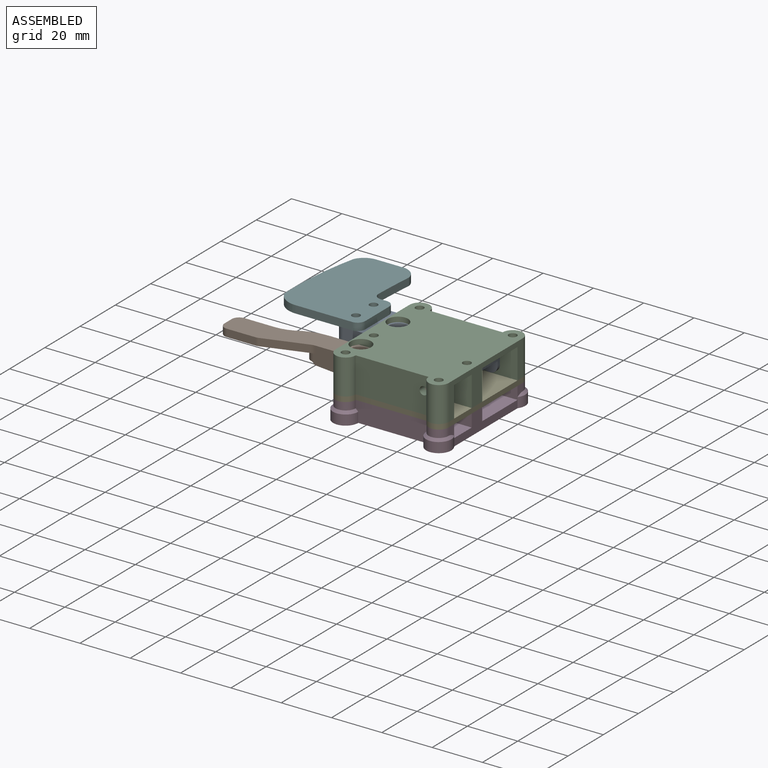
[diagram: assembled view]
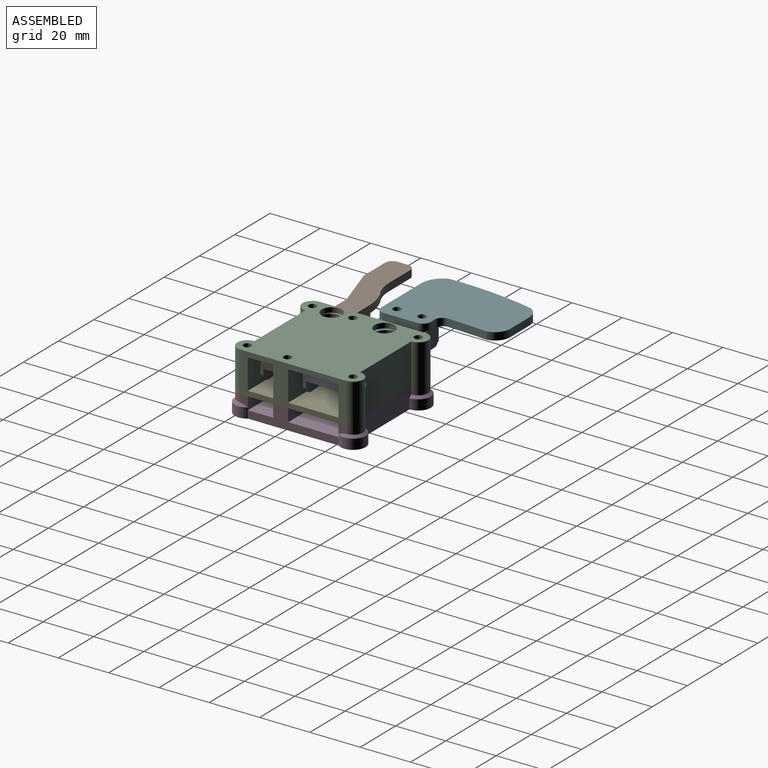
[diagram: assembled view, second angle]
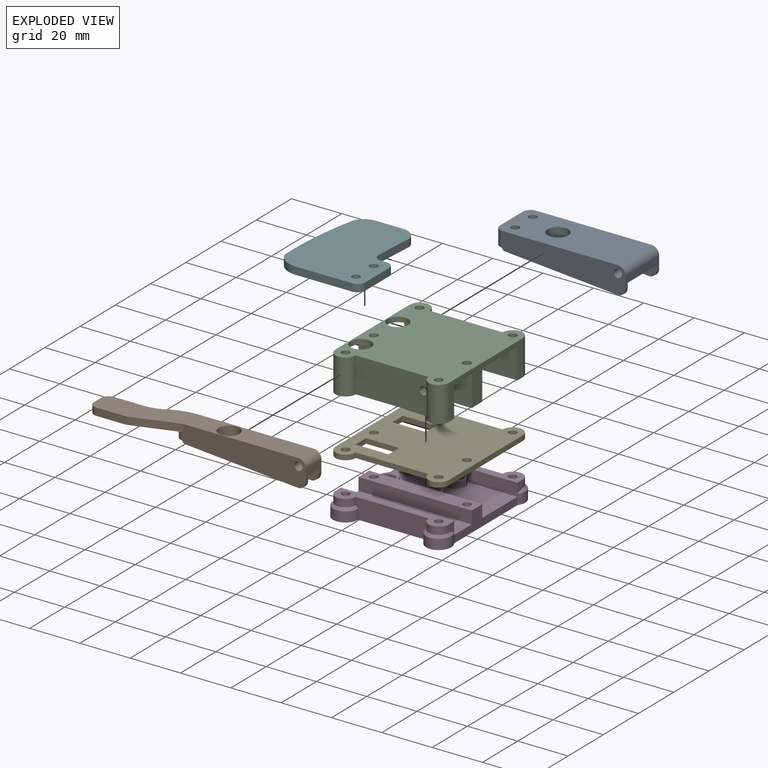
[diagram: exploded view]
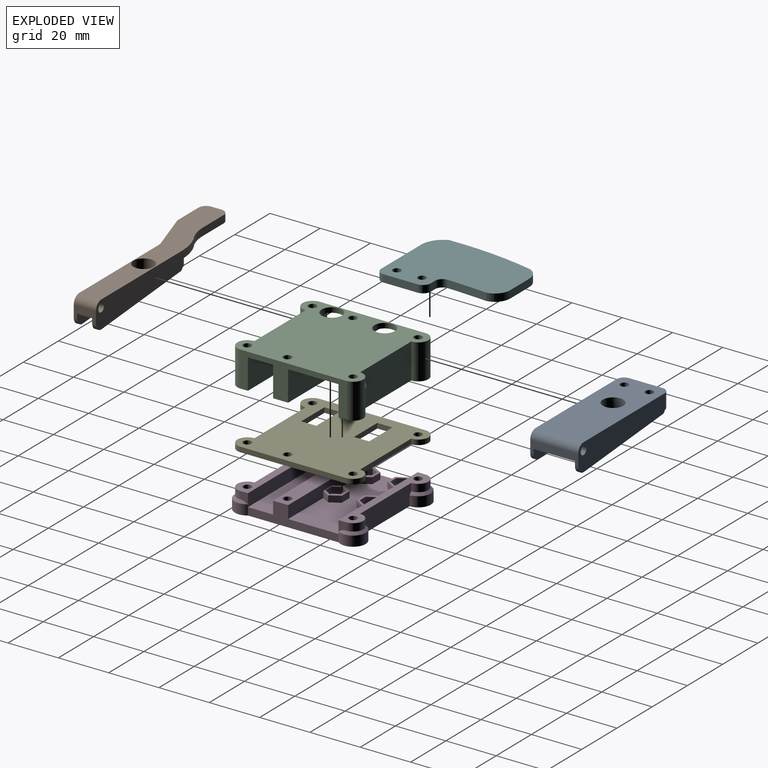
[diagram: exploded view, second angle]
ASSEMBLY  parts=6 mates=5
PART A: 40 faces, bbox 52x19.1x10.7 mm
  f0: plane 2.55x1.15mm, normal (0,1,0), area 1.9mm2, adj f3,f4,f5,f6,f31
  f1: plane 46.84x4.75mm, normal (0,-1,0), area 142.3mm2, adj f3,f8,f16,f17,f21
  f2: plane 13.1x6mm, normal (-1,0,0), area 78.6mm2, adj f3,f10,f19,f20
  f3: plane 52x18.91mm, normal (0,0,-1), area 801.8mm2, adj f0,f1,f2,f4,f8,f11,f14,f18
  f4: cylinder r=0.95mm len=1.3mm, axis (0,-1,0), area 1.3mm2, adj f0,f3,f5,f12,f20
  f5: cylinder r=1mm len=1.3mm, axis (0,-1,0), area 1.3mm2, adj f0,f4,f6,f12
  f6: plane 44.84x3.66mm, normal (-0.08,0,-1), area 58.5mm2, adj f0,f5,f7,f11,f12,f31,f32
  f7: cylinder r=3mm len=3.24mm, axis (0,-1,0), area 6.4mm2, adj f6,f8,f11,f12
  f8: plane 19.1x4.74mm, normal (1,0,0), area 61.8mm2, adj f1,f3,f7,f9,f11,f12,f13,f17
  f9: cylinder r=3mm len=19.1mm, axis (0,-1,0), area 90mm2, adj f8,f10,f12,f13
  f10: plane 49x19.1mm, normal (0,0,1), area 863.1mm2, adj f2,f9,f12,f13,f19,f20,f35,f36
  f11: plane 46.82x4.75mm, normal (0,1,0), area 142.3mm2, adj f3,f6,f7,f8,f32
  f12: plane 49x10.75mm, normal (0,-1,0), area 428.6mm2, adj f4,f5,f6,f7,f8,f9,f10,f20
  f13: plane 49x10.75mm, normal (0,1,0), area 428.6mm2, adj f8,f9,f10,f14,f15,f16,f17,f19
  f14: cylinder r=0.95mm len=1.3mm, axis (0,-1,0), area 1.3mm2, adj f3,f13,f15,f18,f19
  f15: cylinder r=1mm len=1.3mm, axis (0,-1,0), area 1.3mm2, adj f13,f14,f16,f18
  f16: plane 44.84x3.66mm, normal (-0.08,0,-1), area 58.5mm2, adj f1,f13,f15,f17,f18,f21,f22
  f17: cylinder r=3mm len=3.24mm, axis (0,-1,0), area 6.4mm2, adj f1,f8,f13,f16
  f18: plane 2.57x1.15mm, normal (0,-1,0), area 1.9mm2, adj f3,f14,f15,f16,f22
  f19: cylinder r=3mm len=6.36mm, axis (0,0,1), area 28.4mm2, adj f2,f3,f10,f13,f14
  f20: cylinder r=3mm len=6.36mm, axis (0,0,-1), area 28.4mm2, adj f2,f3,f4,f10,f12
  f21: plane 3.68x2.9mm, normal (-0.5,-0.87,0), area 8.6mm2, adj f1,f3,f16,f22,f26,f27
  f22: plane 3.66x2.9mm, normal (0.5,-0.87,0), area 8.6mm2, adj f3,f16,f18,f21,f23,f27
  f23: plane 3.35x2.5mm, normal (1,0,0), area 8.4mm2, adj f3,f22,f24,f27
  f24: plane 2.9x2.5mm, normal (0.5,0.87,0), area 8.4mm2, adj f3,f23,f25,f27
  f25: plane 2.9x2.5mm, normal (-0.5,0.87,0), area 8.4mm2, adj f3,f24,f26,f27
  f26: plane 3.35x2.5mm, normal (-1,0,0), area 8.4mm2, adj f3,f21,f25,f27
  f27: plane 6.7x5.8mm, normal (0,0,-1), area 21.1mm2, adj f21,f22,f23,f24,f25,f26,f36
  f28: plane 2.9x2.5mm, normal (-0.5,-0.87,0), area 8.4mm2, adj f3,f29,f33,f34
  f29: plane 2.9x2.5mm, normal (0.5,-0.87,0), area 8.4mm2, adj f3,f28,f30,f34
  f30: plane 3.35x2.5mm, normal (1,0,0), area 8.4mm2, adj f3,f29,f31,f34
  f31: plane 3.66x2.9mm, normal (0.5,0.87,0), area 8.6mm2, adj f0,f3,f6,f30,f32,f34
  f32: plane 3.68x2.9mm, normal (-0.5,0.87,0), area 8.6mm2, adj f3,f6,f11,f31,f33,f34
  f33: plane 3.35x2.5mm, normal (-1,0,0), area 8.4mm2, adj f3,f28,f32,f34
  f34: plane 6.7x5.8mm, normal (0,0,-1), area 21.1mm2, adj f28,f29,f30,f31,f32,f33,f35
  f35: cylinder r=1.6mm len=3.5mm, axis (0,0,1), area 35.2mm2, adj f10,f34
  f36: cylinder r=1.6mm len=3.5mm, axis (0,0,1), area 35.2mm2, adj f10,f27
  f37: cylinder r=4.1mm len=8.2mm, axis (0,0,1), area 115.9mm2, adj f10,f38
  f38: plane 8.2x8.2mm, normal (0,0,1), area 52.8mm2, adj f37
  f39: cylinder r=1.6mm len=19.1mm, axis (0,-1,0), area 192mm2, adj f12,f13
PART B: 33 faces, bbox 82.2x14.7x10.7 mm
  f0: plane 3x2.8mm, normal (-1,0,0), area 8.4mm2, adj f1,f2,f3,f28
  f1: cylinder r=3mm len=3.36mm, axis (0,0,1), area 14.2mm2, adj f0,f3,f13,f14,f28
  f2: cylinder r=3mm len=3.36mm, axis (0,0,-1), area 14.2mm2, adj f0,f3,f4,f12,f28
  f3: plane 52x8.61mm, normal (0,0,-1), area 314.5mm2, adj f0,f1,f2,f4,f8,f11,f14,f18
  f4: cylinder r=0.95mm len=1.3mm, axis (0,-1,0), area 1.3mm2, adj f2,f3,f5,f11,f12
  f5: cylinder r=1mm len=1.3mm, axis (0,-1,0), area 1.3mm2, adj f4,f6,f11,f12
  f6: plane 44.84x3.66mm, normal (-0.08,0,-1), area 58.5mm2, adj f5,f7,f11,f12
  f7: cylinder r=3mm len=3.24mm, axis (0,-1,0), area 6.4mm2, adj f6,f8,f11,f12
  f8: plane 8.8x4.74mm, normal (1,0,0), area 31.3mm2, adj f3,f7,f9,f11,f12,f13,f17,f18
  f9: cylinder r=3mm len=8.8mm, axis (0,-1,0), area 41.5mm2, adj f8,f10,f12,f13
  f10: plane 79.2x14.68mm, normal (0,0,1), area 671.5mm2, adj f9,f12,f13,f19,f22,f23,f24,f25
  f11: plane 49.75x4.75mm, normal (0,1,0), area 144.6mm2, adj f3,f4,f5,f6,f7,f8
  f12: plane 49x10.75mm, normal (0,-1,0), area 426.2mm2, adj f2,f4,f5,f6,f7,f8,f9,f10
  f13: plane 49x10.75mm, normal (0,1,0), area 428.6mm2, adj f1,f8,f9,f10,f14,f15,f16,f17
  f14: cylinder r=0.95mm len=1.5mm, axis (0,-1,0), area 1.6mm2, adj f1,f3,f13,f15,f18
  f15: cylinder r=1mm len=1.5mm, axis (0,-1,0), area 1.5mm2, adj f13,f14,f16,f18
  f16: plane 44.84x3.66mm, normal (-0.08,0,-1), area 67.5mm2, adj f13,f15,f17,f18
  f17: cylinder r=3mm len=3.24mm, axis (0,-1,0), area 7.4mm2, adj f8,f13,f16,f18
  f18: plane 49.75x4.75mm, normal (0,-1,0), area 144.6mm2, adj f3,f8,f14,f15,f16,f17
  f19: cylinder r=4.1mm len=8.2mm, axis (0,0,1), area 115.9mm2, adj f10,f20
  f20: plane 8.2x8.2mm, normal (0,0,1), area 52.8mm2, adj f19
  f21: cylinder r=1.6mm len=8.8mm, axis (0,-1,0), area 88.5mm2, adj f12,f13
  f22: cylinder r=22.27mm len=9.27mm, axis (0,0,1), area 28.7mm2, adj f10,f13,f23,f28
  f23: cylinder r=16.33mm len=8.93mm, axis (0,0,1), area 28.4mm2, adj f10,f22,f24,f28
  f24: plane 12x3mm, normal (0,1,0), area 36mm2, adj f10,f23,f28,f29
  f25: plane 4x3mm, normal (-1,0,0), area 12mm2, adj f10,f28,f29,f30
  f26: plane 11.53x3mm, normal (0,-1,0), area 34.6mm2, adj f10,f28,f30,f31
  f27: plane 17x5.49mm, normal (0.31,-0.95,0), area 53.6mm2, adj f10,f28,f31,f32
  f28: plane 33.99x14.68mm, normal (0,0,-1), area 297mm2, adj f0,f1,f2,f12,f22,f23,f24,f25
  f29: cylinder r=3mm len=3mm, axis (0,0,-1), area 14.1mm2, adj f10,f24,f25,f28
  f30: cylinder r=3mm len=3mm, axis (0,0,1), area 14.1mm2, adj f10,f25,f26,f28
  f31: cylinder r=3mm len=3mm, axis (0,0,1), area 2.8mm2, adj f10,f26,f27,f28
  f32: cylinder r=5mm len=3mm, axis (0,0,1), area 4.7mm2, adj f10,f12,f27,f28
PART C: 29 faces, bbox 45x50x14 mm
  f0: plane 45x10mm, normal (0,0,-1), area 398.3mm2, adj f2,f6,f12,f22,f24
  f1: plane 45x20mm, normal (0,0,-1), area 848.3mm2, adj f2,f6,f16,f19,f21
  f2: plane 42x14mm, normal (1,0,0), area 228mm2, adj f0,f1,f3,f15,f18,f19,f20,f21
  f3: cylinder r=4mm len=14mm, axis (0,0,-1), area 176mm2, adj f2,f4,f18,f20
  f4: plane 28.99x14mm, normal (0,1,0), area 397.9mm2, adj f3,f5,f18,f20,f28
  f5: cylinder r=4mm len=14mm, axis (0,0,-1), area 176mm2, adj f4,f6,f18,f20
  f6: plane 42x14mm, normal (-1,0,0), area 228mm2, adj f0,f1,f5,f7,f18,f19,f20,f21
  f7: cylinder r=4mm len=14mm, axis (0,0,-1), area 176mm2, adj f6,f8,f18,f25
  f8: plane 28.99x14mm, normal (0,-1,0), area 397.9mm2, adj f7,f15,f18,f25,f26
  f9: cylinder r=1.6mm len=14mm, axis (0,0,-1), area 141.1mm2, adj f18,f20
  f10: cylinder r=1.6mm len=14mm, axis (0,0,-1), area 141.1mm2, adj f18,f25
  f11: cylinder r=1.6mm len=14mm, axis (0,0,-1), area 141.1mm2, adj f18,f25
  f12: cylinder r=4.06mm len=8.12mm, axis (0,0,-1), area 51mm2, adj f0,f18
  f13: cylinder r=1.6mm len=14mm, axis (0,0,-1), area 141.1mm2, adj f18,f23
  f14: cylinder r=1.6mm len=14mm, axis (0,0,-1), area 141.1mm2, adj f18,f23
  f15: cylinder r=4mm len=14mm, axis (0,0,-1), area 176mm2, adj f2,f8,f18,f25
  f16: cylinder r=4.06mm len=8.12mm, axis (0,0,-1), area 51mm2, adj f1,f18
  f17: cylinder r=1.6mm len=14mm, axis (0,0,-1), area 141.1mm2, adj f18,f20
  f18: plane 50.01x45mm, normal (0,0,1), area 1838.5mm2, adj f2,f3,f4,f5,f6,f7,f8,f9
  f19: plane 45x12mm, normal (0,-1,0), area 532mm2, adj f1,f2,f6,f20,f28
  f20: plane 45x7mm, normal (0,0,-1), area 169.2mm2, adj f2,f3,f4,f5,f6,f9,f17,f19
  f21: plane 45x12mm, normal (0,1,0), area 532mm2, adj f1,f2,f6,f23,f27
  f22: plane 45x12mm, normal (0,-1,0), area 532mm2, adj f0,f2,f6,f23,f27
  f23: plane 45x6mm, normal (0,0,-1), area 253.7mm2, adj f2,f6,f13,f14,f21,f22
  f24: plane 45x12mm, normal (0,1,0), area 532mm2, adj f0,f2,f6,f25,f26
  f25: plane 45x7mm, normal (0,0,-1), area 169.1mm2, adj f2,f6,f7,f8,f10,f11,f15,f24
  f26: cylinder r=1.6mm len=3.2mm, axis (0,-1,0), area 30.1mm2, adj f8,f24
  f27: cylinder r=1.6mm len=6mm, axis (0,-1,0), area 60.3mm2, adj f21,f22
  f28: cylinder r=1.6mm len=3.2mm, axis (0,-1,0), area 30.1mm2, adj f4,f19
PART D: 134 faces, bbox 47x8x52 mm
  f0: cylinder r=1.6mm len=4mm, axis (0,-1,0), area 40.3mm2, adj f27,f133
  f1: cylinder r=1.6mm len=4mm, axis (0,-1,0), area 40.3mm2, adj f27,f126
  f2: cylinder r=1.6mm len=4mm, axis (0,-1,0), area 40.3mm2, adj f29,f119
  f3: cylinder r=1.6mm len=4mm, axis (0,-1,0), area 40.3mm2, adj f29,f112
  f4: cylinder r=1.6mm len=4mm, axis (0,-1,0), area 40.3mm2, adj f35,f105
  f5: cylinder r=1.6mm len=4mm, axis (0,-1,0), area 40.3mm2, adj f35,f98
  f6: plane 45x20.01mm, normal (0,1,0), area 706.6mm2, adj f10,f14,f22,f28,f41,f42,f43,f44
  f7: plane 45x10mm, normal (0,1,0), area 450.1mm2, adj f10,f14,f17,f30
  f8: plane 28.99x8mm, normal (0,0,1), area 223mm2, adj f9,f15,f16,f18,f21,f24,f25,f27
  f9: cylinder r=5mm len=10mm, axis (0,-1,0), area 75.7mm2, adj f8,f10,f16,f18,f22
  f10: plane 36x8mm, normal (1,0,0), area 138mm2, adj f6,f7,f9,f11,f16,f17,f28,f29
  f11: cylinder r=5mm len=10mm, axis (0,-1,0), area 75.7mm2, adj f10,f12,f16,f19,f30
  f12: plane 28.99x8mm, normal (0,0,-1), area 223mm2, adj f11,f13,f16,f19,f20,f31,f34,f35
  f13: cylinder r=5mm len=10mm, axis (0,-1,0), area 75.7mm2, adj f12,f14,f16,f20,f30
  f14: plane 36x8mm, normal (-1,0,0), area 138mm2, adj f6,f7,f13,f15,f16,f17,f28,f29
  f15: cylinder r=5mm len=10mm, axis (0,-1,0), area 75.7mm2, adj f8,f14,f16,f21,f22
  f16: plane 52x47mm, normal (0,-1,0), area 1842.8mm2, adj f8,f9,f10,f11,f12,f13,f14,f15
  f17: plane 45x5mm, normal (0,0,-1), area 225mm2, adj f7,f10,f14,f29
  f18: cone r=5mm half-angle=45deg, axis (0,-1,0), area 22.8mm2, adj f8,f9,f25,f26
  f19: cone r=5mm half-angle=45deg, axis (0,-1,0), area 22.8mm2, adj f11,f12,f33,f34
  f20: cone r=5mm half-angle=45deg, axis (0,-1,0), area 22.8mm2, adj f12,f13,f31,f32
  f21: cone r=5mm half-angle=45deg, axis (0,-1,0), area 22.8mm2, adj f8,f15,f23,f24
  f22: plane 45x5mm, normal (0,0,-1), area 199.2mm2, adj f6,f9,f15,f23,f26,f27,f44,f45
  f23: plane 4x3mm, normal (-1,0,0), area 10mm2, adj f21,f22,f24,f27
  f24: cylinder r=4mm len=8mm, axis (0,-1,0), area 37.7mm2, adj f8,f21,f23,f27
  f25: cylinder r=4mm len=8mm, axis (0,-1,0), area 37.7mm2, adj f8,f18,f26,f27
  f26: plane 4x3mm, normal (1,0,0), area 10mm2, adj f18,f22,f25,f27
  f27: plane 45x7mm, normal (0,1,0), area 169mm2, adj f0,f1,f8,f22,f23,f24,f25,f26
  f28: plane 45x5mm, normal (0,0,1), area 199.2mm2, adj f6,f10,f14,f29,f62,f72,f73,f75
  f29: plane 45x6mm, normal (0,1,0), area 253.7mm2, adj f2,f3,f10,f14,f17,f28
  f30: plane 45x5mm, normal (0,0,1), area 225mm2, adj f7,f11,f13,f32,f33,f35
  f31: cylinder r=4mm len=8mm, axis (0,-1,0), area 37.7mm2, adj f12,f20,f32,f35
  f32: plane 4x3mm, normal (-1,0,0), area 10mm2, adj f20,f30,f31,f35
  f33: plane 4x3mm, normal (1,0,0), area 10mm2, adj f19,f30,f34,f35
  f34: cylinder r=4mm len=8mm, axis (0,-1,0), area 37.7mm2, adj f12,f19,f33,f35
  f35: plane 45x7mm, normal (0,1,0), area 169.1mm2, adj f4,f5,f12,f30,f31,f32,f33,f34
  f36: plane 2.94x2.5mm, normal (0.87,0,0.5), area 8.5mm2, adj f37,f46,f47,f48
  f37: plane 3.4x2.5mm, normal (0,0,1), area 8.5mm2, adj f36,f38,f47,f48
  f38: plane 2.95x2.5mm, normal (-0.87,0,0.5), area 8.5mm2, adj f37,f39,f47,f48
  f39: plane 2.94x2.5mm, normal (-0.87,0,-0.5), area 8.5mm2, adj f38,f40,f47,f48
  f40: plane 3.4x2.5mm, normal (0,0,-1), area 8.5mm2, adj f39,f46,f47,f48
  f41: plane 3.87x2.5mm, normal (0.87,0,-0.5), area 11.1mm2, adj f6,f42,f45,f47
  f42: plane 4.46x2.5mm, normal (0,0,-1), area 11.1mm2, adj f6,f41,f43,f47
  f43: plane 3.85x2.5mm, normal (-0.86,0,-0.5), area 11.1mm2, adj f6,f42,f44,f47
  f44: plane 3.24x2.5mm, normal (-0.87,0,0.5), area 9.3mm2, adj f6,f22,f43,f47
  f45: plane 3.2x2.5mm, normal (0.86,0,0.5), area 9.3mm2, adj f6,f22,f41,f47
  f46: plane 2.95x2.5mm, normal (0.87,0,-0.5), area 8.5mm2, adj f36,f40,f47,f48
  f47: plane 8.92x7.09mm, normal (0,1,0), area 18.5mm2, adj f22,f36,f37,f38,f39,f40,f41,f42
  f48: plane 6.8x5.89mm, normal (0,1,0), area 22mm2, adj f36,f37,f38,f39,f40,f46,f91
  f49: plane 2.94x2.5mm, normal (0.87,0,0.5), area 8.5mm2, adj f50,f59,f60,f61
  f50: plane 3.4x2.5mm, normal (0,0,1), area 8.5mm2, adj f49,f51,f60,f61
  f51: plane 2.94x2.5mm, normal (-0.87,0,0.5), area 8.5mm2, adj f50,f52,f60,f61
  f52: plane 2.94x2.5mm, normal (-0.87,0,-0.5), area 8.5mm2, adj f51,f53,f60,f61
  f53: plane 3.4x2.5mm, normal (0,0,-1), area 8.5mm2, adj f52,f59,f60,f61
  f54: plane 3.25x2.5mm, normal (0.87,0,0.5), area 9.4mm2, adj f6,f22,f55,f60
  f55: plane 3.84x2.5mm, normal (0.86,0,-0.5), area 11.1mm2, adj f6,f54,f56,f60
  f56: plane 4.44x2.5mm, normal (0,0,-1), area 11.1mm2, adj f6,f55,f57,f60
  f57: plane 3.85x2.5mm, normal (-0.87,0,-0.5), area 11.1mm2, adj f6,f56,f58,f60
  f58: plane 3.23x2.5mm, normal (-0.86,0,0.5), area 9.3mm2, adj f6,f22,f57,f60
  f59: plane 2.94x2.5mm, normal (0.87,0,-0.5), area 8.5mm2, adj f49,f53,f60,f61
  f60: plane 8.87x7.09mm, normal (0,1,0), area 18.2mm2, adj f22,f49,f50,f51,f52,f53,f54,f55
  f61: plane 6.8x5.89mm, normal (0,1,0), area 22mm2, adj f49,f50,f51,f52,f53,f59,f90
  f62: plane 3.24x2.5mm, normal (-0.87,0,-0.5), area 9.3mm2, adj f6,f28,f63,f73
  f63: plane 3.85x2.5mm, normal (-0.86,0,0.5), area 11.1mm2, adj f6,f62,f64,f73
  f64: plane 4.46x2.5mm, normal (0,0,1), area 11.1mm2, adj f6,f63,f65,f73
  f65: plane 3.87x2.5mm, normal (0.87,0,0.5), area 11.1mm2, adj f6,f64,f72,f73
  f66: plane 2.94x2.5mm, normal (0.87,0,-0.5), area 8.5mm2, adj f67,f71,f73,f74
  f67: plane 2.95x2.5mm, normal (0.87,0,0.5), area 8.5mm2, adj f66,f68,f73,f74
  f68: plane 3.4x2.5mm, normal (0,0,1), area 8.5mm2, adj f67,f69,f73,f74
  f69: plane 2.94x2.5mm, normal (-0.87,0,0.5), area 8.5mm2, adj f68,f70,f73,f74
  f70: plane 2.95x2.5mm, normal (-0.87,0,-0.5), area 8.5mm2, adj f69,f71,f73,f74
  f71: plane 3.4x2.5mm, normal (0,0,-1), area 8.5mm2, adj f66,f70,f73,f74
  f72: plane 3.2x2.5mm, normal (0.86,0,-0.5), area 9.3mm2, adj f6,f28,f65,f73
  f73: plane 8.92x7.09mm, normal (0,1,0), area 18.5mm2, adj f28,f62,f63,f64,f65,f66,f67,f68
  f74: plane 6.8x5.89mm, normal (0,1,0), area 22mm2, adj f66,f67,f68,f69,f70,f71,f89
  f75: plane 3.23x2.5mm, normal (-0.86,0,-0.5), area 9.3mm2, adj f6,f28,f76,f86
  f76: plane 3.85x2.5mm, normal (-0.87,0,0.5), area 11.1mm2, adj f6,f75,f77,f86
  f77: plane 4.44x2.5mm, normal (0,0,1), area 11.1mm2, adj f6,f76,f78,f86
  f78: plane 3.84x2.5mm, normal (0.86,0,0.5), area 11.1mm2, adj f6,f77,f85,f86
  f79: plane 2.94x2.5mm, normal (0.87,0,0.5), area 8.5mm2, adj f80,f84,f86,f87
  f80: plane 3.4x2.5mm, normal (0,0,1), area 8.5mm2, adj f79,f81,f86,f87
  f81: plane 2.94x2.5mm, normal (-0.87,0,0.5), area 8.5mm2, adj f80,f82,f86,f87
  f82: plane 2.94x2.5mm, normal (-0.87,0,-0.5), area 8.5mm2, adj f81,f83,f86,f87
  f83: plane 3.4x2.5mm, normal (0,0,-1), area 8.5mm2, adj f82,f84,f86,f87
  f84: plane 2.94x2.5mm, normal (0.87,0,-0.5), area 8.5mm2, adj f79,f83,f86,f87
  f85: plane 3.25x2.5mm, normal (0.87,0,-0.5), area 9.4mm2, adj f6,f28,f78,f86
  f86: plane 8.87x7.09mm, normal (0,1,0), area 18.2mm2, adj f28,f75,f76,f77,f78,f79,f80,f81
  f87: plane 6.8x5.89mm, normal (0,1,0), area 22mm2, adj f79,f80,f81,f82,f83,f84,f88
  f88: cylinder r=1.6mm len=3.2mm, axis (0,-1,0), area 30.2mm2, adj f16,f87
  f89: cylinder r=1.6mm len=3.2mm, axis (0,-1,0), area 30.2mm2, adj f16,f74
  f90: cylinder r=1.6mm len=3.2mm, axis (0,-1,0), area 30.2mm2, adj f16,f61
  f91: cylinder r=1.6mm len=3.2mm, axis (0,-1,0), area 30.2mm2, adj f16,f48
  f92: plane 4x3.4mm, normal (0,0,1), area 13.6mm2, adj f16,f93,f97,f98
  f93: plane 4x2.95mm, normal (0.87,0,0.5), area 13.6mm2, adj f16,f92,f94,f98
  f94: plane 4x2.94mm, normal (0.86,0,-0.5), area 13.6mm2, adj f16,f93,f95,f98
  f95: plane 4x3.4mm, normal (0,0,-1), area 13.6mm2, adj f16,f94,f96,f98
  f96: plane 4x2.95mm, normal (-0.87,0,-0.5), area 13.6mm2, adj f16,f95,f97,f98
  f97: plane 4x2.94mm, normal (-0.86,0,0.5), area 13.6mm2, adj f16,f92,f96,f98
  f98: plane 6.8x5.9mm, normal (0,-1,0), area 21.9mm2, adj f5,f92,f93,f94,f95,f96,f97
  f99: plane 4x2.95mm, normal (0.87,0,0.5), area 13.6mm2, adj f16,f100,f104,f105
  f100: plane 4x2.94mm, normal (0.86,0,-0.5), area 13.6mm2, adj f16,f99,f101,f105
  f101: plane 4x3.4mm, normal (0,0,-1), area 13.6mm2, adj f16,f100,f102,f105
  f102: plane 4x2.95mm, normal (-0.87,0,-0.5), area 13.6mm2, adj f16,f101,f103,f105
  f103: plane 4x2.94mm, normal (-0.86,0,0.5), area 13.6mm2, adj f16,f102,f104,f105
  f104: plane 4x3.4mm, normal (0,0,1), area 13.6mm2, adj f16,f99,f103,f105
  f105: plane 6.8x5.9mm, normal (0,-1,0), area 21.9mm2, adj f4,f99,f100,f101,f102,f103,f104
  f106: plane 4x2.94mm, normal (0.86,0,-0.5), area 13.6mm2, adj f16,f107,f111,f112
  f107: plane 4x3.4mm, normal (0,0,-1), area 13.6mm2, adj f16,f106,f108,f112
  f108: plane 4x2.95mm, normal (-0.87,0,-0.5), area 13.6mm2, adj f16,f107,f109,f112
  f109: plane 4x2.94mm, normal (-0.86,0,0.5), area 13.6mm2, adj f16,f108,f110,f112
  f110: plane 4x3.4mm, normal (0,0,1), area 13.6mm2, adj f16,f109,f111,f112
  f111: plane 4x2.95mm, normal (0.87,0,0.5), area 13.6mm2, adj f16,f106,f110,f112
  f112: plane 6.8x5.9mm, normal (0,-1,0), area 21.9mm2, adj f3,f106,f107,f108,f109,f110,f111
  f113: plane 4x2.95mm, normal (-0.87,0,-0.5), area 13.6mm2, adj f16,f114,f118,f119
  f114: plane 4x2.94mm, normal (-0.86,0,0.5), area 13.6mm2, adj f16,f113,f115,f119
  f115: plane 4x3.4mm, normal (0.01,0,1), area 13.6mm2, adj f16,f114,f116,f119
  f116: plane 4x2.95mm, normal (0.87,0,0.5), area 13.6mm2, adj f16,f115,f117,f119
  f117: plane 4x2.94mm, normal (0.86,0,-0.5), area 13.6mm2, adj f16,f116,f118,f119
  f118: plane 4x3.4mm, normal (-0.01,0,-1), area 13.6mm2, adj f16,f113,f117,f119
  f119: plane 6.8x5.91mm, normal (0,-1,0), area 21.9mm2, adj f2,f113,f114,f115,f116,f117,f118
  f120: plane 4x3.4mm, normal (0,0,1), area 13.6mm2, adj f16,f121,f125,f126
  f121: plane 4x2.95mm, normal (0.87,0,0.5), area 13.6mm2, adj f16,f120,f122,f126
  f122: plane 4x2.94mm, normal (0.87,0,-0.5), area 13.6mm2, adj f16,f121,f123,f126
  f123: plane 4x3.4mm, normal (0,0,-1), area 13.6mm2, adj f16,f122,f124,f126
  f124: plane 4x2.95mm, normal (-0.87,0,-0.5), area 13.6mm2, adj f16,f123,f125,f126
  f125: plane 4x2.94mm, normal (-0.87,0,0.5), area 13.6mm2, adj f16,f120,f124,f126
  f126: plane 6.8x5.89mm, normal (0,-1,0), area 21.9mm2, adj f1,f120,f121,f122,f123,f124,f125
  f127: plane 4x3.4mm, normal (0,0,1), area 13.6mm2, adj f16,f128,f132,f133
  f128: plane 4x2.95mm, normal (0.87,0,0.5), area 13.6mm2, adj f16,f127,f129,f133
  f129: plane 4x2.94mm, normal (0.87,0,-0.5), area 13.6mm2, adj f16,f128,f130,f133
  f130: plane 4x3.4mm, normal (0,0,-1), area 13.6mm2, adj f16,f129,f131,f133
  f131: plane 4x2.95mm, normal (-0.87,0,-0.5), area 13.6mm2, adj f16,f130,f132,f133
  f132: plane 4x2.94mm, normal (-0.87,0,0.5), area 13.6mm2, adj f16,f127,f131,f133
  f133: plane 6.8x5.89mm, normal (0,-1,0), area 21.9mm2, adj f0,f127,f128,f129,f130,f131,f132
PART E: 24 faces, bbox 45x50x2 mm
  f0: plane 13.2x2mm, normal (0,1,0), area 26.4mm2, adj f1,f14,f22,f23
  f1: plane 6x2mm, normal (1,0,0), area 12mm2, adj f0,f2,f22,f23
  f2: plane 13.2x2mm, normal (0,-1,0), area 26.4mm2, adj f1,f14,f22,f23
  f3: plane 13.2x2mm, normal (0,1,0), area 26.4mm2, adj f4,f15,f22,f23
  f4: plane 6x2mm, normal (1,0,0), area 12mm2, adj f3,f5,f22,f23
  f5: plane 13.2x2mm, normal (0,-1,0), area 26.4mm2, adj f4,f15,f22,f23
  f6: cylinder r=4mm len=8mm, axis (0,0,-1), area 25.1mm2, adj f7,f20,f22,f23
  f7: plane 42x2mm, normal (1,0,0), area 84mm2, adj f6,f8,f22,f23
  f8: cylinder r=4mm len=8mm, axis (0,0,-1), area 25.1mm2, adj f7,f9,f22,f23
  f9: plane 28.99x2mm, normal (0,1,0), area 58mm2, adj f8,f10,f22,f23
  f10: cylinder r=4mm len=8mm, axis (0,0,-1), area 25.1mm2, adj f9,f11,f22,f23
  f11: plane 42x2mm, normal (-1,0,0), area 84mm2, adj f10,f12,f22,f23
  f12: cylinder r=4mm len=8mm, axis (0,0,-1), area 25.1mm2, adj f11,f20,f22,f23
  f13: cylinder r=1.6mm len=3.21mm, axis (0,0,-1), area 20.2mm2, adj f22,f23
  f14: plane 6x2mm, normal (-1,0,0), area 12mm2, adj f0,f2,f22,f23
  f15: plane 6x2mm, normal (-1,0,0), area 12mm2, adj f3,f5,f22,f23
  f16: cylinder r=1.6mm len=3.21mm, axis (0,0,-1), area 20.2mm2, adj f22,f23
  f17: cylinder r=1.6mm len=3.21mm, axis (0,0,-1), area 20.2mm2, adj f22,f23
  f18: cylinder r=1.6mm len=3.21mm, axis (0,0,-1), area 20.2mm2, adj f22,f23
  f19: cylinder r=1.6mm len=3.21mm, axis (0,0,-1), area 20.2mm2, adj f22,f23
  f20: plane 28.99x2mm, normal (0,-1,0), area 58mm2, adj f6,f12,f22,f23
  f21: cylinder r=1.6mm len=3.21mm, axis (0,0,-1), area 20.2mm2, adj f22,f23
  f22: plane 50x45mm, normal (0,0,1), area 1783.6mm2, adj f0,f1,f2,f3,f4,f5,f6,f7
  f23: plane 50x45mm, normal (0,0,-1), area 1783.6mm2, adj f0,f1,f2,f3,f4,f5,f6,f7
PART F: 16 faces, bbox 33.9x3x43.9 mm
  f0: plane 22.51x3mm, normal (0,0,1), area 67.5mm2, adj f1,f13,f14,f15
  f1: cylinder r=3.02mm len=3.15mm, axis (0,1,0), area 14.9mm2, adj f0,f2,f14,f15
  f2: plane 13.45x3mm, normal (-1,0,0), area 40.3mm2, adj f1,f3,f14,f15
  f3: cylinder r=3.13mm len=3.15mm, axis (0,1,0), area 14.8mm2, adj f2,f4,f14,f15
  f4: plane 3x2.29mm, normal (0.01,0,-1), area 6.9mm2, adj f3,f5,f14,f15
  f5: cylinder r=3.01mm len=3.15mm, axis (0,1,0), area 14.7mm2, adj f4,f6,f14,f15
  f6: cylinder r=295.77mm len=15.84mm, axis (0,1,0), area 47.6mm2, adj f5,f7,f14,f15
  f7: cylinder r=6.12mm len=5.83mm, axis (0,1,0), area 25.6mm2, adj f6,f8,f14,f15
  f8: plane 11.01x3mm, normal (0,0,-1), area 33mm2, adj f7,f9,f14,f15
  f9: cylinder r=6.71mm len=6.13mm, axis (0,1,0), area 23.2mm2, adj f8,f10,f14,f15
  f10: cylinder r=139.49mm len=34.43mm, axis (0,1,0), area 104mm2, adj f9,f13,f14,f15
  f11: cylinder r=1.6mm len=3.2mm, axis (0,1,0), area 30.2mm2, adj f14,f15
  f12: cylinder r=1.6mm len=3.2mm, axis (0,1,0), area 30.2mm2, adj f14,f15
  f13: cylinder r=8.81mm len=8.15mm, axis (0,1,0), area 31.3mm2, adj f0,f10,f14,f15
  f14: plane 43.9x33.88mm, normal (0,-1,0), area 1200.3mm2, adj f0,f1,f2,f3,f4,f5,f6,f7
  f15: plane 43.9x33.88mm, normal (0,1,0), area 1200.3mm2, adj f0,f1,f2,f3,f4,f5,f6,f7
PLACE A t=(-21.17,46.5,-30.61)mm
PLACE B t=(-21.17,29.6,-30.61)mm
PLACE C t=(10.96,56.37,-31.37)mm
PLACE D rot(axis=(0,0.71,0.71),180deg) t=(38.81,73.79,-41.37)mm
PLACE E t=(8.09,46.27,-33.37)mm
PLACE F rot(axis=(0,-0.71,0.71),180deg) t=(-11.17,111.06,-19.87)mm
MATE fastened F.f11 <-> A.f35  axis (0,0,-1) through (-16.18,51.24,-19.87)mm
MATE fastened B.f9 <-> C.f26  axis (0,-1,0) through (27.83,29.8,-22.87)mm
MATE fastened D.f4 <-> E.f12  axis (0,0,1) through (-3.17,26.8,-33.37)mm
MATE fastened E.f10 <-> C.f5  axis (0,0,1) through (-3.17,68.8,-31.37)mm
MATE fastened A.f9 <-> C.f26  axis (0,1,0) through (27.83,65.8,-22.87)mm
